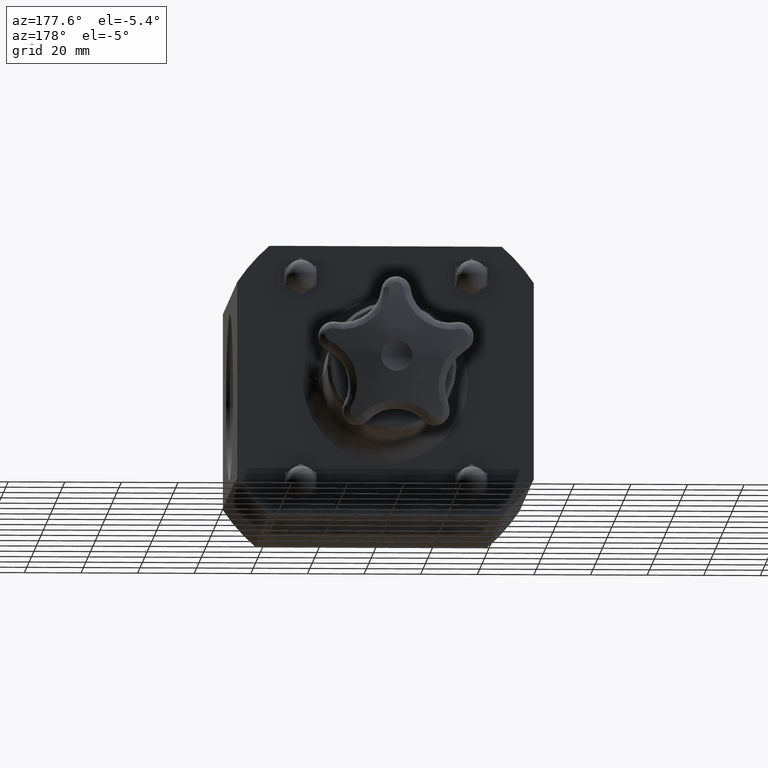
[diagram: clean part render]
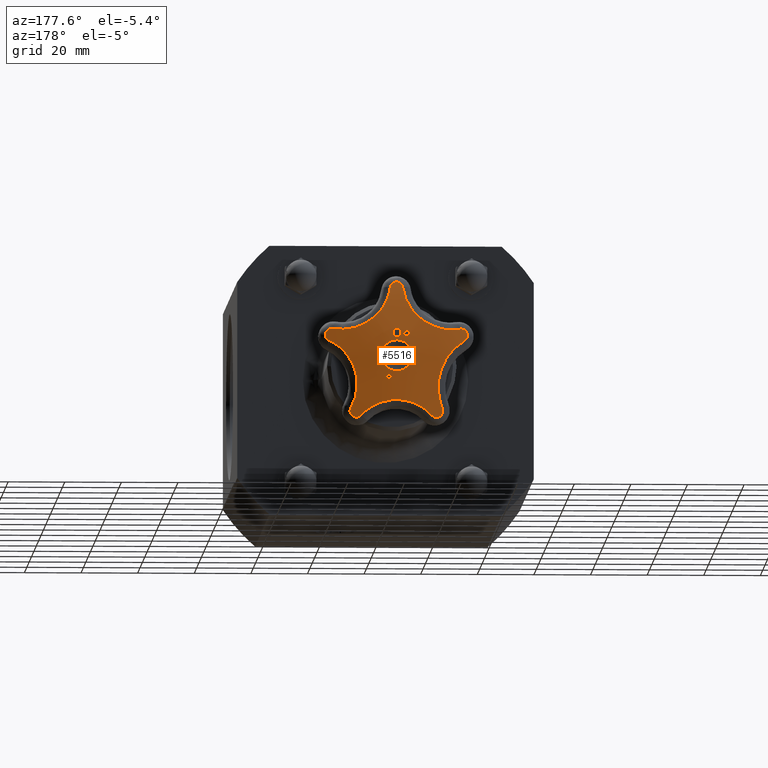
[diagram: same view with one face highlighted and labeled with its STEP entity id]
A machine part, auxiliary view. The second image highlights one B-rep face of the part: STEP entity #5516.
In plain terms, the highlighted spherical surface has radius 101.6 mm.
Its self-contained STEP definition (entity closure, byte-faithful):
#2327=CARTESIAN_POINT('',(0.085862900185203,8.490578033837450,-0.334336098257463));
#2328=VERTEX_POINT('',#2327);
#2335=CARTESIAN_POINT('',(0.080862571524466,8.488070388788941,-0.364135061299997));
#2336=VERTEX_POINT('',#2335);
#2337=CARTESIAN_POINT('',(0.138077283113864,4.505500000000001,-0.023169658459774));
#2338=DIRECTION('',(0.986211736099962,8.119753E-016,-0.165488403154721));
#2339=DIRECTION('',(0.165488403154721,1.362512E-016,0.986211736099962));
#2340=AXIS2_PLACEMENT_3D('',#2337,#2338,#2339);
#2341=CIRCLE('',#2340,3.997548977913186);
#2342=EDGE_CURVE('',#2336,#2328,#2341,.T.);
#2360=CARTESIAN_POINT('',(0.066931145986268,8.488560100352849,-0.361597094393903));
#2361=VERTEX_POINT('',#2360);
#2362=CARTESIAN_POINT('',(-0.061608234058832,4.505500000000001,-0.338180345563004));
#2363=DIRECTION('',(-0.179225881333302,0.0,-0.983807950496590));
#2364=DIRECTION('',(0.0,-1.0,0.0));
#2365=AXIS2_PLACEMENT_3D('',#2362,#2363,#2364);
#2366=CIRCLE('',#2365,3.985202438944732);
#2367=EDGE_CURVE('',#2361,#2336,#2366,.T.);
#2385=CARTESIAN_POINT('',(0.086359266902223,8.497345606544357,-0.240230577846814));
#2386=VERTEX_POINT('',#2385);
#2387=CARTESIAN_POINT('',(0.121696449326061,4.505500000000001,-0.019480935927100));
#2388=DIRECTION('',(-0.987428598717144,-8.129772E-016,0.158065690254078));
#2389=DIRECTION('',(-0.158065690254078,-1.301398E-016,-0.987428598717144));
#2390=AXIS2_PLACEMENT_3D('',#2387,#2388,#2389);
#2391=CIRCLE('',#2390,3.998100857576862);
#2392=EDGE_CURVE('',#2386,#2361,#2391,.T.);
#2410=CARTESIAN_POINT('',(0.178491128782152,8.488560100243761,-0.321516958794137));
#2411=VERTEX_POINT('',#2410);
#2412=CARTESIAN_POINT('',(-0.081379549747356,4.505500000000001,-0.092237461550080));
#2413=DIRECTION('',(0.661592173204071,0.0,0.749863851879202));
#2414=DIRECTION('',(0.0,1.0,0.0));
#2415=AXIS2_PLACEMENT_3D('',#2412,#2413,#2414);
#2416=CIRCLE('',#2415,3.998108255108873);
#2417=EDGE_CURVE('',#2411,#2386,#2416,.T.);
#2453=CARTESIAN_POINT('',(0.169360113250160,8.488070388702393,-0.332340564889027));
#2454=VERTEX_POINT('',#2453);
#2455=CARTESIAN_POINT('',(0.262739148876329,4.505500000000001,-0.221652121134104));
#2456=DIRECTION('',(0.764340282334966,0.0,-0.644813099122609));
#2457=DIRECTION('',(0.0,-1.0,0.0));
#2458=AXIS2_PLACEMENT_3D('',#2455,#2456,#2457);
#2459=CIRCLE('',#2458,3.985202438627741);
#2460=EDGE_CURVE('',#2454,#2411,#2459,.T.);
#2478=CARTESIAN_POINT('',(0.146539084429396,8.490578033778149,-0.312536976105991));
#2479=VERTEX_POINT('',#2478);
#2480=CARTESIAN_POINT('',(-0.091762441742966,4.505500000000001,-0.105744133077217));
#2481=DIRECTION('',(-0.655409775395539,0.0,-0.755273477831686));
#2482=DIRECTION('',(0.0,-1.0,0.0));
#2483=AXIS2_PLACEMENT_3D('',#2480,#2481,#2482);
#2484=CIRCLE('',#2483,3.997548978137118);
#2485=EDGE_CURVE('',#2479,#2454,#2484,.T.);
#2503=CARTESIAN_POINT('',(0.116200988857738,4.505500000000001,-0.323436538421052));
#2504=DIRECTION('',(0.338111065893150,0.0,-0.941106214579735));
#2505=DIRECTION('',(0.0,-1.0,0.0));
#2506=AXIS2_PLACEMENT_3D('',#2503,#2504,#2505);
#2507=CIRCLE('',#2506,3.985208418113498);
#2508=EDGE_CURVE('',#2328,#2479,#2507,.T.);
#2538=CARTESIAN_POINT('',(0.037834369669125,8.496204436490727,0.269901206082852));
#2539=VERTEX_POINT('',#2538);
#2546=CARTESIAN_POINT('',(-0.000813251585518,8.497463335806678,0.253432563411025));
#2547=VERTEX_POINT('',#2546);
#2548=CARTESIAN_POINT('',(-0.000813251585518,8.497463335806678,0.253432563411025));
#2549=CARTESIAN_POINT('',(0.004822604549686,8.497463267161418,0.253451729844247));
#2550=CARTESIAN_POINT('',(0.010434056143410,8.497408968571550,0.254137147028970));
#2551=CARTESIAN_POINT('',(0.019829419967581,8.497191776701515,0.256945437338924));
#2552=CARTESIAN_POINT('',(0.023603879105443,8.497063271092424,0.258616838560288));
#2553=CARTESIAN_POINT('',(0.031162797320999,8.496707503911848,0.263275608997045));
#2554=CARTESIAN_POINT('',(0.034718544485048,8.496475224151672,0.266334166676060));
#2555=CARTESIAN_POINT('',(0.037834369669125,8.496204436490727,0.269901206082852));
#2556=B_SPLINE_CURVE_WITH_KNOTS('',3,(#2548,#2549,#2550,#2551,#2552,#2553,#2554,#2555),.UNSPECIFIED.,.F.,.U.,(4,2,2,4),(0.0,0.042945472093289,0.074729953679080,0.111130521126663),.UNSPECIFIED.);
#2557=EDGE_CURVE('',#2547,#2539,#2556,.T.);
#2590=CARTESIAN_POINT('',(0.051972176469601,8.492648590963244,0.316140801626153));
#2591=VERTEX_POINT('',#2590);
#2598=CARTESIAN_POINT('',(0.037834369669125,8.496204436490727,0.269901206082852));
#2599=CARTESIAN_POINT('',(0.041442739555283,8.495886429832900,0.274097371770596));
#2600=CARTESIAN_POINT('',(0.044216393332110,8.495526143654534,0.278867364485765));
#2601=CARTESIAN_POINT('',(0.051175872144365,8.494247534047899,0.295695352673442));
#2602=CARTESIAN_POINT('',(0.052000310715345,8.493304176149836,0.307867975918427));
#2603=CARTESIAN_POINT('',(0.051972176469601,8.492648590963245,0.316140801626153));
#2604=B_SPLINE_CURVE_WITH_KNOTS('',3,(#2598,#2599,#2600,#2601,#2602,#2603),.UNSPECIFIED.,.F.,.U.,(4,2,4),(0.0,0.042240697270331,0.139117363804144),.UNSPECIFIED.);
#2605=EDGE_CURVE('',#2539,#2591,#2604,.T.);
#2631=CARTESIAN_POINT('',(0.037422621985940,8.488875481075144,0.362380082417698));
#2632=VERTEX_POINT('',#2631);
#2639=CARTESIAN_POINT('',(0.051972176469601,8.492648590963245,0.316140801626153));
#2640=CARTESIAN_POINT('',(0.051955724861650,8.492265235014529,0.320978368143260));
#2641=CARTESIAN_POINT('',(0.051649887753158,8.491873160763518,0.325860197870603));
#2642=CARTESIAN_POINT('',(0.050134657362976,8.491046460787356,0.336059631335725));
#2643=CARTESIAN_POINT('',(0.048942330808366,8.490679768741240,0.340537076610656));
#2644=CARTESIAN_POINT('',(0.045132529339024,8.489814489793274,0.351068251626343));
#2645=CARTESIAN_POINT('',(0.041865078415877,8.489314249290123,0.357098260899482));
#2646=CARTESIAN_POINT('',(0.037422621985940,8.488875481075144,0.362380082417698));
#2647=B_SPLINE_CURVE_WITH_KNOTS('',3,(#2639,#2640,#2641,#2642,#2643,#2644,#2645,#2646),.UNSPECIFIED.,.F.,.U.,(4,2,2,4),(0.0,0.036978033263811,0.078812994269673,0.145814753845857),.UNSPECIFIED.);
#2648=EDGE_CURVE('',#2591,#2632,#2647,.T.);
#2676=CARTESIAN_POINT('',(-0.001238542349030,8.487552846207736,0.378488567887761));
#2677=VERTEX_POINT('',#2676);
#2684=CARTESIAN_POINT('',(0.037422621985940,8.488875481075144,0.362380082417698));
#2685=CARTESIAN_POINT('',(0.034954443929442,8.488644692501275,0.365171856276012));
#2686=CARTESIAN_POINT('',(0.032197988751053,8.488440415363389,0.367645041378230));
#2687=CARTESIAN_POINT('',(0.025433171661508,8.488054380883789,0.372335971569166));
#2688=CARTESIAN_POINT('',(0.021382576080442,8.487892027163673,0.374321631798851));
#2689=CARTESIAN_POINT('',(0.014161922593864,8.487697132621298,0.376716303028089));
#2690=CARTESIAN_POINT('',(0.011126297743758,8.487640822220747,0.377412789087581));
#2691=CARTESIAN_POINT('',(0.004967186895542,8.487568654773591,0.378304358121796));
#2692=CARTESIAN_POINT('',(0.001864839243261,8.487552808314179,0.378499121875411));
#2693=CARTESIAN_POINT('',(-0.001238542349030,8.487552846207736,0.378488567887761));
#2694=B_SPLINE_CURVE_WITH_KNOTS('',3,(#2684,#2685,#2686,#2687,#2688,#2689,#2690,#2691,#2692,#2693),.UNSPECIFIED.,.F.,.U.,(4,2,2,2,4),(0.0,0.028449418287417,0.062797366334246,0.086669104210055,0.110412733579470),.UNSPECIFIED.);
#2695=EDGE_CURVE('',#2632,#2677,#2694,.T.);
#2881=CARTESIAN_POINT('',(-0.039886494311887,8.488875481072100,0.362117169387378));
#2882=VERTEX_POINT('',#2881);
#2889=CARTESIAN_POINT('',(-0.001238542349030,8.487552846207736,0.378488567887761));
#2890=CARTESIAN_POINT('',(-0.006745334190302,8.487552913447912,0.378469840376703));
#2891=CARTESIAN_POINT('',(-0.012222719771298,8.487603190919959,0.377803010782852));
#2892=CARTESIAN_POINT('',(-0.022169110236771,8.487836259202796,0.374873454632415));
#2893=CARTESIAN_POINT('',(-0.025880772573746,8.487983982792516,0.373045650941542));
#2894=CARTESIAN_POINT('',(-0.032976239086442,8.488326456239561,0.368822005397032));
#2895=CARTESIAN_POINT('',(-0.036677483482781,8.488576120274294,0.365763676003977));
#2896=CARTESIAN_POINT('',(-0.039886494311887,8.488875481072100,0.362117169387378));
#2897=B_SPLINE_CURVE_WITH_KNOTS('',3,(#2889,#2890,#2891,#2892,#2893,#2894,#2895,#2896),.UNSPECIFIED.,.F.,.U.,(4,2,2,4),(0.0,0.041961996486355,0.079020325656231,0.132098515306939),.UNSPECIFIED.);
#2898=EDGE_CURVE('',#2677,#2882,#2897,.T.);
#2924=CARTESIAN_POINT('',(-0.054121214575592,8.492648590959069,0.315779998964418));
#2925=VERTEX_POINT('',#2924);
#2932=CARTESIAN_POINT('',(-0.039886494311887,8.488875481072100,0.362117169387378));
#2933=CARTESIAN_POINT('',(-0.043384531614648,8.489215540252459,0.357991135129825));
#2934=CARTESIAN_POINT('',(-0.046110522559895,8.489601304155913,0.353327026506887));
#2935=CARTESIAN_POINT('',(-0.049655140330857,8.490287322165351,0.344989572698872));
#2936=CARTESIAN_POINT('',(-0.051408401706376,8.490680648419753,0.340203251638014));
#2937=CARTESIAN_POINT('',(-0.053714336300572,8.491694761028935,0.327721858865082));
#2938=CARTESIAN_POINT('',(-0.054141415064125,8.492177878462817,0.321719917253610));
#2939=CARTESIAN_POINT('',(-0.054121214575592,8.492648590959071,0.315779998964418));
#2940=B_SPLINE_CURVE_WITH_KNOTS('',3,(#2932,#2933,#2934,#2935,#2936,#2937,#2938,#2939),.UNSPECIFIED.,.F.,.U.,(4,2,2,4),(0.0,0.041300163745689,0.069239721804254,0.093823977580811),.UNSPECIFIED.);
#2941=EDGE_CURVE('',#2882,#2925,#2940,.T.);
#2967=CARTESIAN_POINT('',(-0.039571990800145,8.496205379604829,0.269637962344317));
#2968=VERTEX_POINT('',#2967);
#2975=CARTESIAN_POINT('',(-0.054121214575592,8.492648590959071,0.315779998964418));
#2976=CARTESIAN_POINT('',(-0.054104973183970,8.493027048439480,0.311004246190808));
#2977=CARTESIAN_POINT('',(-0.053791585087137,8.493402200783876,0.306211457940531));
#2978=CARTESIAN_POINT('',(-0.052375519715102,8.494143410979319,0.296655576028873));
#2979=CARTESIAN_POINT('',(-0.051258684496636,8.494507467278867,0.291916990166382));
#2980=CARTESIAN_POINT('',(-0.047377403862630,8.495352193214817,0.280860112488069));
#2981=CARTESIAN_POINT('',(-0.044132654634138,8.495811607413359,0.274796561836271));
#2982=CARTESIAN_POINT('',(-0.039571990800145,8.496205379604829,0.269637962344317));
#2983=B_SPLINE_CURVE_WITH_KNOTS('',3,(#2975,#2976,#2977,#2978,#2979,#2980,#2981,#2982),.UNSPECIFIED.,.F.,.U.,(4,2,2,4),(0.0,0.036505533163791,0.073822024429602,0.126837533468264),.UNSPECIFIED.);
#2984=EDGE_CURVE('',#2925,#2968,#2983,.T.);
#3011=CARTESIAN_POINT('',(-0.039571990800145,8.496205379604829,0.269637962344317));
#3012=CARTESIAN_POINT('',(-0.036994618978142,8.496426649193221,0.266741374653484));
#3013=CARTESIAN_POINT('',(-0.034125944551207,8.496624226597591,0.264155087526019));
#3014=CARTESIAN_POINT('',(-0.028127958870902,8.496941902899273,0.260022999604723));
#3015=CARTESIAN_POINT('',(-0.024119800176995,8.497119835051821,0.257727462092389));
#3016=CARTESIAN_POINT('',(-0.015614631027452,8.497330482346445,0.255058899401250));
#3017=CARTESIAN_POINT('',(-0.012615830697541,8.497382732516449,0.254406267976287));
#3018=CARTESIAN_POINT('',(-0.006666959610796,8.497448427235687,0.253597873925736));
#3019=CARTESIAN_POINT('',(-0.003741704705231,8.497463371475512,0.253422604320575));
#3020=CARTESIAN_POINT('',(-0.000813251586153,8.497463335806678,0.253432563411023));
#3021=B_SPLINE_CURVE_WITH_KNOTS('',3,(#3011,#3012,#3013,#3014,#3015,#3016,#3017,#3018,#3019,#3020),.UNSPECIFIED.,.F.,.U.,(4,2,2,2,4),(0.0,0.029592715149351,0.055552496815722,0.069221283901438,0.082236559754027),.UNSPECIFIED.);
#3022=EDGE_CURVE('',#2968,#2547,#3021,.T.);
#3296=CARTESIAN_POINT('',(-0.247118300170072,8.492930202010449,-0.198325313099392));
#3297=VERTEX_POINT('',#3296);
#3304=CARTESIAN_POINT('',(-0.207827658530660,8.493059962457522,-0.237008882018032));
#3305=VERTEX_POINT('',#3304);
#3306=CARTESIAN_POINT('',(-0.220785948703939,4.505500000000000,-0.224250808083117));
#3307=DIRECTION('',(0.701580297701931,0.0,0.712590405405847));
#3308=DIRECTION('',(0.0,1.0,0.0));
#3309=AXIS2_PLACEMENT_3D('',#3306,#3307,#3308);
#3310=CIRCLE('',#3309,3.987601426914302);
#3311=EDGE_CURVE('',#3305,#3297,#3310,.T.);
#3329=CARTESIAN_POINT('',(-0.176580613442941,8.496324840990898,-0.205271467783727));
#3330=VERTEX_POINT('',#3329);
#3331=CARTESIAN_POINT('',(0.012958290173278,4.505500000000001,-0.012758073934916));
#3332=DIRECTION('',(-0.712590405405847,0.0,0.701580297701931));
#3333=DIRECTION('',(0.0,1.0,0.0));
#3334=AXIS2_PLACEMENT_3D('',#3331,#3332,#3333);
#3335=CIRCLE('',#3334,3.999958664069575);
#3336=EDGE_CURVE('',#3330,#3305,#3335,.T.);
#3354=CARTESIAN_POINT('',(-0.218712377317301,8.496156275729469,-0.163790674304834));
#3355=VERTEX_POINT('',#3354);
#3356=CARTESIAN_POINT('',(-0.189538903616219,4.505500000000001,-0.192513393848812));
#3357=DIRECTION('',(-0.701580297701931,0.0,-0.712590405405848));
#3358=DIRECTION('',(0.0,-1.0,0.0));
#3359=AXIS2_PLACEMENT_3D('',#3356,#3357,#3358);
#3360=CIRCLE('',#3359,3.990866271526118);
#3361=EDGE_CURVE('',#3355,#3330,#3360,.T.);
#3379=CARTESIAN_POINT('',(-0.208751528883225,8.497092069880930,-0.153673507321846));
#3380=VERTEX_POINT('',#3379);
#3381=CARTESIAN_POINT('',(-0.029173473701083,4.505500000000001,0.028722719543978));
#3382=DIRECTION('',(-0.712590405405848,0.0,0.701580297701931));
#3383=DIRECTION('',(0.0,1.0,0.0));
#3384=AXIS2_PLACEMENT_3D('',#3381,#3382,#3383);
#3385=CIRCLE('',#3384,3.999790483739644);
#3386=EDGE_CURVE('',#3380,#3355,#3385,.T.);
#3404=CARTESIAN_POINT('',(-0.155255276069070,8.497156082813490,-0.206343199041757));
#3405=VERTEX_POINT('',#3404);
#3406=CARTESIAN_POINT('',(-0.179578055182143,4.505500000000001,-0.182396226865824));
#3407=DIRECTION('',(0.701580297701931,0.0,0.712590405405847));
#3408=DIRECTION('',(0.0,1.0,0.0));
#3409=AXIS2_PLACEMENT_3D('',#3406,#3407,#3408);
#3410=CIRCLE('',#3409,3.991802016448476);
#3411=EDGE_CURVE('',#3405,#3380,#3410,.T.);
#3429=CARTESIAN_POINT('',(-0.239444912833798,8.487646073155508,-0.291854048747285));
#3430=VERTEX_POINT('',#3429);
#3431=CARTESIAN_POINT('',(0.024322779113072,4.505500000000001,-0.023946972175933));
#3432=DIRECTION('',(0.712590405405848,0.0,-0.701580297701931));
#3433=DIRECTION('',(0.0,-1.0,0.0));
#3434=AXIS2_PLACEMENT_3D('',#3431,#3432,#3433);
#3435=CIRCLE('',#3434,3.999854365466301);
#3436=EDGE_CURVE('',#3430,#3405,#3435,.T.);
#3454=CARTESIAN_POINT('',(-0.292941165647953,8.487581907347240,-0.239184357027373));
#3455=VERTEX_POINT('',#3454);
#3456=CARTESIAN_POINT('',(-0.263767691946872,4.505500000000000,-0.267907076571352));
#3457=DIRECTION('',(-0.701580297701931,0.0,-0.712590405405847));
#3458=DIRECTION('',(0.0,-1.0,0.0));
#3459=AXIS2_PLACEMENT_3D('',#3456,#3457,#3458);
#3460=CIRCLE('',#3459,3.982292355290859);
#3461=EDGE_CURVE('',#3455,#3430,#3460,.T.);
#3479=CARTESIAN_POINT('',(-0.282980317213877,8.488896837187415,-0.229067190044385));
#3480=VERTEX_POINT('',#3479);
#3481=CARTESIAN_POINT('',(-0.029173473701083,4.505500000000001,0.028722719543978));
#3482=DIRECTION('',(-0.712590405405848,0.0,0.701580297701931));
#3483=DIRECTION('',(0.0,1.0,0.0));
#3484=AXIS2_PLACEMENT_3D('',#3481,#3482,#3483);
#3485=CIRCLE('',#3484,3.999790483739644);
#3486=EDGE_CURVE('',#3480,#3455,#3485,.T.);
#3504=CARTESIAN_POINT('',(-0.240848553339517,8.489065709633238,-0.270547983523279));
#3505=VERTEX_POINT('',#3504);
#3506=CARTESIAN_POINT('',(-0.253806843512795,4.505500000000000,-0.257789909588364));
#3507=DIRECTION('',(0.701580297701931,0.0,0.712590405405847));
#3508=DIRECTION('',(0.0,1.0,0.0));
#3509=AXIS2_PLACEMENT_3D('',#3506,#3507,#3508);
#3510=CIRCLE('',#3509,3.983607215665281);
#3511=EDGE_CURVE('',#3505,#3480,#3510,.T.);
#3529=CARTESIAN_POINT('',(-0.217788506964737,8.491914037971874,-0.247126049001020));
#3530=VERTEX_POINT('',#3529);
#3531=CARTESIAN_POINT('',(0.012958290173277,4.505500000000001,-0.012758073934915));
#3532=DIRECTION('',(-0.712590405405848,0.0,0.701580297701930));
#3533=DIRECTION('',(0.0,1.0,0.0));
#3534=AXIS2_PLACEMENT_3D('',#3531,#3532,#3533);
#3535=CIRCLE('',#3534,3.999958664069575);
#3536=EDGE_CURVE('',#3530,#3505,#3535,.T.);
#3554=CARTESIAN_POINT('',(-0.257079148604149,8.491784240222977,-0.208442480082380));
#3555=VERTEX_POINT('',#3554);
#3556=CARTESIAN_POINT('',(-0.230746797138015,4.505500000000000,-0.234367975066104));
#3557=DIRECTION('',(-0.701580297701931,0.0,-0.712590405405848));
#3558=DIRECTION('',(0.0,-1.0,0.0));
#3559=AXIS2_PLACEMENT_3D('',#3556,#3557,#3558);
#3560=CIRCLE('',#3559,3.986455514347798);
#3561=EDGE_CURVE('',#3555,#3530,#3560,.T.);
#3579=CARTESIAN_POINT('',(-0.026332351466134,4.505500000000001,0.025925494983724));
#3580=DIRECTION('',(-0.712590405405848,0.0,0.701580297701931));
#3581=DIRECTION('',(0.0,1.0,0.0));
#3582=AXIS2_PLACEMENT_3D('',#3579,#3580,#3581);
#3583=CIRCLE('',#3582,3.999829305854953);
#3584=EDGE_CURVE('',#3297,#3555,#3583,.T.);
#3606=CARTESIAN_POINT('',(0.104679989358757,8.487501420719624,0.364289425065761));
#3607=VERTEX_POINT('',#3606);
#3614=CARTESIAN_POINT('',(0.193260657033247,8.487499064924952,0.326088585172621));
#3615=VERTEX_POINT('',#3614);
#3616=CARTESIAN_POINT('',(0.148881029224554,4.505500000000001,0.345227513574775));
#3617=DIRECTION('',(0.395999965100261,0.0,0.918250525532435));
#3618=DIRECTION('',(0.0,1.0,0.0));
#3619=AXIS2_PLACEMENT_3D('',#3616,#3617,#3618);
#3620=CIRCLE('',#3619,3.982292355290859);
#3621=EDGE_CURVE('',#3615,#3607,#3620,.T.);
#3646=CARTESIAN_POINT('',(0.099057688326097,8.488816377129187,0.351252350992700));
#3647=VERTEX_POINT('',#3646);
#3654=CARTESIAN_POINT('',(-0.044201039865799,4.505500000000001,0.019061911490985));
#3655=DIRECTION('',(-0.918250525532435,-7.560210E-016,0.395999965100260));
#3656=DIRECTION('',(-0.395999965100260,-3.260377E-016,-0.918250525532435));
#3657=AXIS2_PLACEMENT_3D('',#3654,#3655,#3656);
#3658=CIRCLE('',#3657,3.999710353463748);
#3659=EDGE_CURVE('',#3607,#3647,#3658,.T.);
#3679=CARTESIAN_POINT('',(0.136025829875733,8.489099428197436,0.335309661763104));
#3680=VERTEX_POINT('',#3679);
#3687=CARTESIAN_POINT('',(0.143258728191895,4.505500000000001,0.332190439501715));
#3688=DIRECTION('',(-0.395999965100261,0.0,-0.918250525532434));
#3689=DIRECTION('',(0.0,-1.0,0.0));
#3690=AXIS2_PLACEMENT_3D('',#3687,#3688,#3689);
#3691=CIRCLE('',#3690,3.983607215665281);
#3692=EDGE_CURVE('',#3647,#3680,#3691,.T.);
#3712=CARTESIAN_POINT('',(0.094128134509063,8.497294244967611,0.238156671410436));
#3713=VERTEX_POINT('',#3712);
#3720=CARTESIAN_POINT('',(-0.007232898316163,4.505500000000001,0.003119222261388));
#3721=DIRECTION('',(-0.918250525532435,-7.560210E-016,0.395999965100261));
#3722=DIRECTION('',(-0.395999965100261,-3.260377E-016,-0.918250525532435));
#3723=AXIS2_PLACEMENT_3D('',#3720,#3721,#3722);
#3724=CIRCLE('',#3723,3.999992244446786);
#3725=EDGE_CURVE('',#3680,#3713,#3724,.T.);
#3745=CARTESIAN_POINT('',(0.108772519084282,8.497293856457107,0.231841209976490));
#3746=VERTEX_POINT('',#3745);
#3753=CARTESIAN_POINT('',(0.101361032825225,4.505500000000001,0.235037449149048));
#3754=DIRECTION('',(-0.395999965100260,0.0,-0.918250525532435));
#3755=DIRECTION('',(0.0,-1.0,0.0));
#3756=AXIS2_PLACEMENT_3D('',#3753,#3754,#3755);
#3757=CIRCLE('',#3756,3.991802016448476);
#3758=EDGE_CURVE('',#3713,#3746,#3757,.T.);
#3778=CARTESIAN_POINT('',(0.150670214450951,8.489099038887709,0.328994200329157));
#3779=VERTEX_POINT('',#3778);
#3786=CARTESIAN_POINT('',(0.007411486259055,4.505500000000001,-0.003196239172558));
#3787=DIRECTION('',(0.918250525532434,7.560210E-016,-0.395999965100261));
#3788=DIRECTION('',(0.395999965100261,3.260377E-016,0.918250525532434));
#3789=AXIS2_PLACEMENT_3D('',#3786,#3787,#3788);
#3790=CIRCLE('',#3789,3.999991856732535);
#3791=EDGE_CURVE('',#3746,#3779,#3790,.T.);
#3811=CARTESIAN_POINT('',(0.187638356000588,8.488814022112202,0.313051511099560));
#3812=VERTEX_POINT('',#3811);
#3819=CARTESIAN_POINT('',(0.143258728191895,4.505500000000001,0.332190439501715));
#3820=DIRECTION('',(-0.395999965100261,0.0,-0.918250525532435));
#3821=DIRECTION('',(0.0,-1.0,0.0));
#3822=AXIS2_PLACEMENT_3D('',#3819,#3820,#3821);
#3823=CIRCLE('',#3822,3.983607215665281);
#3824=EDGE_CURVE('',#3779,#3812,#3823,.T.);
#3843=CARTESIAN_POINT('',(0.044379627808692,4.505500000000001,-0.019138928402155));
#3844=DIRECTION('',(0.918250525532435,7.560210E-016,-0.395999965100259));
#3845=DIRECTION('',(0.395999965100259,3.260377E-016,0.918250525532435));
#3846=AXIS2_PLACEMENT_3D('',#3843,#3844,#3845);
#3847=CIRCLE('',#3846,3.999708008099489);
#3848=EDGE_CURVE('',#3812,#3615,#3847,.T.);
#3947=CARTESIAN_POINT('',(-0.132776476717603,8.497152316888537,-0.221545002897485));
#3948=VERTEX_POINT('',#3947);
#3955=CARTESIAN_POINT('',(-0.141106922486277,8.489658741024817,-0.326447488490870));
#3956=VERTEX_POINT('',#3955);
#3957=CARTESIAN_POINT('',(-0.114461481346889,4.505500000000001,0.009089538322840));
#3958=DIRECTION('',(0.996861755361221,8.207438E-016,-0.079162116559279));
#3959=DIRECTION('',(0.079162116559279,6.517635E-017,0.996861755361221));
#3960=AXIS2_PLACEMENT_3D('',#3957,#3958,#3959);
#3961=CIRCLE('',#3960,3.998351654067081);
#3962=EDGE_CURVE('',#3956,#3948,#3961,.T.);
#3980=CARTESIAN_POINT('',(-0.071391562909487,8.497171847508763,-0.247909472492114));
#3981=VERTEX_POINT('',#3980);
#3982=CARTESIAN_POINT('',(0.083150511259557,4.505500000000001,-0.073809704991097));
#3983=DIRECTION('',(-0.747864056465855,0.0,0.663851905959784));
#3984=DIRECTION('',(0.0,1.0,0.0));
#3985=AXIS2_PLACEMENT_3D('',#3982,#3983,#3984);
#3986=CIRCLE('',#3985,3.998454466406539);
#3987=EDGE_CURVE('',#3981,#3956,#3986,.T.);
#4005=CARTESIAN_POINT('',(-0.055754940032601,8.496998131883169,-0.254625312636307));
#4006=VERTEX_POINT('',#4005);
#4007=CARTESIAN_POINT('',(-0.101011795140338,4.505500000000001,-0.235187752062933));
#4008=DIRECTION('',(0.394635554071923,0.0,0.918837732933485));
#4009=DIRECTION('',(0.0,1.0,0.0));
#4010=AXIS2_PLACEMENT_3D('',#4007,#4008,#4009);
#4011=CIRCLE('',#4010,3.991802016448476);
#4012=EDGE_CURVE('',#4006,#3981,#4011,.T.);
#4030=CARTESIAN_POINT('',(-0.140907158403207,8.487784076964298,-0.348652696916783));
#4031=VERTEX_POINT('',#4030);
#4032=CARTESIAN_POINT('',(0.096057099062325,4.505500000000001,-0.086990350077204));
#4033=DIRECTION('',(0.741222642945153,0.0,-0.671259259590065));
#4034=DIRECTION('',(0.0,-1.0,0.0));
#4035=AXIS2_PLACEMENT_3D('',#4032,#4033,#4034);
#4036=CIRCLE('',#4035,3.997900162924680);
#4037=EDGE_CURVE('',#4031,#4006,#4036,.T.);
#4055=CARTESIAN_POINT('',(-0.156722485541543,8.487781975401070,-0.341860104313800));
#4056=VERTEX_POINT('',#4055);
#4057=CARTESIAN_POINT('',(-0.148368062214244,4.505500000000001,-0.345448281377658));
#4058=DIRECTION('',(-0.394635554071924,0.0,-0.918837732933484));
#4059=DIRECTION('',(0.0,-1.0,0.0));
#4060=AXIS2_PLACEMENT_3D('',#4057,#4058,#4059);
#4061=CIRCLE('',#4060,3.982292355290859);
#4062=EDGE_CURVE('',#4056,#4031,#4061,.T.);
#4080=CARTESIAN_POINT('',(-0.147698282548688,8.496978628851238,-0.215136172588455));
#4081=VERTEX_POINT('',#4080);
#4082=CARTESIAN_POINT('',(-0.131710197155654,4.505500000000001,0.009379282501568));
#4083=DIRECTION('',(-0.997474063033574,-8.212479E-016,0.071031637847470));
#4084=DIRECTION('',(-0.071031637847470,-5.848231E-017,-0.997474063033574));
#4085=AXIS2_PLACEMENT_3D('',#4082,#4083,#4084);
#4086=CIRCLE('',#4085,3.997819962557716);
#4087=EDGE_CURVE('',#4081,#4056,#4086,.T.);
#4105=CARTESIAN_POINT('',(-0.101011795140338,4.505500000000001,-0.235187752062933));
#4106=DIRECTION('',(0.394635554071923,0.0,0.918837732933485));
#4107=DIRECTION('',(0.0,1.0,0.0));
#4108=AXIS2_PLACEMENT_3D('',#4105,#4106,#4107);
#4109=CIRCLE('',#4108,3.991802016448476);
#4110=EDGE_CURVE('',#3948,#4081,#4109,.T.);
#4132=CARTESIAN_POINT('',(-0.069865805707584,8.497162659387477,0.248491414025746));
#4133=VERTEX_POINT('',#4132);
#4140=CARTESIAN_POINT('',(-0.084532147718005,8.497264063873194,0.242227113207305));
#4141=VERTEX_POINT('',#4140);
#4142=CARTESIAN_POINT('',(-0.100539922146023,4.505500000000001,0.235389858602194));
#4143=DIRECTION('',(0.392792028171763,0.0,-0.919627328108899));
#4144=DIRECTION('',(0.0,-1.0,0.0));
#4145=AXIS2_PLACEMENT_3D('',#4142,#4143,#4144);
#4146=CIRCLE('',#4145,3.991802016448476);
#4147=EDGE_CURVE('',#4141,#4133,#4146,.T.);
#4172=CARTESIAN_POINT('',(-0.117000849670736,8.487652665435395,0.358846694762692));
#4173=VERTEX_POINT('',#4172);
#4180=CARTESIAN_POINT('',(0.030674116438438,4.505500000000001,0.013101555423552));
#4181=DIRECTION('',(0.919627328108900,7.571545E-016,0.392792028171762));
#4182=DIRECTION('',(-0.392792028171762,-3.233965E-016,0.919627328108900));
#4183=AXIS2_PLACEMENT_3D('',#4180,#4181,#4182);
#4184=CIRCLE('',#4183,3.999860928560668);
#4185=EDGE_CURVE('',#4133,#4173,#4184,.T.);
#4205=CARTESIAN_POINT('',(-0.144723813227019,8.487791062296548,0.347005638337589));
#4206=VERTEX_POINT('',#4205);
#4213=CARTESIAN_POINT('',(-0.147674966109175,4.505500000000001,0.345745139339139));
#4214=DIRECTION('',(-0.392792028171761,0.0,0.919627328108900));
#4215=DIRECTION('',(0.0,1.0,0.0));
#4216=AXIS2_PLACEMENT_3D('',#4213,#4214,#4215);
#4217=CIRCLE('',#4216,3.982292355290859);
#4218=EDGE_CURVE('',#4173,#4206,#4217,.T.);
#4244=CARTESIAN_POINT('',(-0.170668187046201,8.488392332671245,0.327781995050034));
#4245=VERTEX_POINT('',#4244);
#4252=CARTESIAN_POINT('',(-0.144723813227019,8.487791062296546,0.347005638337589));
#4253=CARTESIAN_POINT('',(-0.150088261328745,8.487795762969325,0.344714370575645));
#4254=CARTESIAN_POINT('',(-0.155816045050099,8.487823287565297,0.341843284165148));
#4255=CARTESIAN_POINT('',(-0.163386369744129,8.487985173854675,0.336346581494136));
#4256=CARTESIAN_POINT('',(-0.167427829443189,8.488105667536207,0.332952450875756));
#4257=CARTESIAN_POINT('',(-0.170668187046201,8.488392332671245,0.327781995050034));
#4258=B_SPLINE_CURVE_WITH_KNOTS('',3,(#4252,#4253,#4254,#4255,#4256,#4257),.UNSPECIFIED.,.F.,.U.,(4,2,4),(0.0,0.044449644500484,0.071079555324561),.UNSPECIFIED.);
#4259=EDGE_CURVE('',#4206,#4245,#4258,.T.);
#4431=CARTESIAN_POINT('',(-0.172546135424808,8.490815390487377,0.295785512651345));
#4432=VERTEX_POINT('',#4431);
#4439=CARTESIAN_POINT('',(-0.170668187046201,8.488392332671245,0.327781995050034));
#4440=CARTESIAN_POINT('',(-0.172986087574707,8.488591167831977,0.324159065981218));
#4441=CARTESIAN_POINT('',(-0.174567491806922,8.488838750576290,0.320245416315975));
#4442=CARTESIAN_POINT('',(-0.176129629330608,8.489442814318249,0.311764074180628));
#4443=CARTESIAN_POINT('',(-0.175887094211250,8.489718772794619,0.308335133779386));
#4444=CARTESIAN_POINT('',(-0.175001277294214,8.490211349698701,0.302427671544135));
#4445=CARTESIAN_POINT('',(-0.173928522803418,8.490515328212927,0.299022037632057));
#4446=CARTESIAN_POINT('',(-0.172546135424808,8.490815390487377,0.295785512651345));
#4447=B_SPLINE_CURVE_WITH_KNOTS('',3,(#4439,#4440,#4441,#4442,#4443,#4444,#4445,#4446),.UNSPECIFIED.,.F.,.U.,(4,2,2,4),(0.0,0.032808337471925,0.065876100718766,0.113361042324126),.UNSPECIFIED.);
#4448=EDGE_CURVE('',#4245,#4432,#4447,.T.);
#4476=CARTESIAN_POINT('',(-0.152421846635915,8.493095568897900,0.275407261294860));
#4477=VERTEX_POINT('',#4476);
#4484=CARTESIAN_POINT('',(-0.172546135424808,8.490815390487377,0.295785512651345));
#4485=CARTESIAN_POINT('',(-0.171321928932312,8.491081117873360,0.292919329875214));
#4486=CARTESIAN_POINT('',(-0.169804261392701,8.491343863950837,0.290215418914446));
#4487=CARTESIAN_POINT('',(-0.165910493783790,8.491891779064993,0.284897251377496));
#4488=CARTESIAN_POINT('',(-0.163657217073235,8.492148699667299,0.282590003201545));
#4489=CARTESIAN_POINT('',(-0.158684575838198,8.492639217410808,0.278482510744070));
#4490=CARTESIAN_POINT('',(-0.155702157988005,8.492881831002917,0.276686491070644));
#4491=CARTESIAN_POINT('',(-0.152421846635915,8.493095568897900,0.275407261294860));
#4492=B_SPLINE_CURVE_WITH_KNOTS('',3,(#4484,#4485,#4486,#4487,#4488,#4489,#4490,#4491),.UNSPECIFIED.,.F.,.U.,(4,2,2,4),(0.0,0.023835253161564,0.050398261842090,0.082258015573386),.UNSPECIFIED.);
#4493=EDGE_CURVE('',#4432,#4477,#4492,.T.);
#4521=CARTESIAN_POINT('',(-0.114533366717588,8.494179920008204,0.278055037055049));
#4522=VERTEX_POINT('',#4521);
#4529=CARTESIAN_POINT('',(-0.152421846635915,8.493095568897900,0.275407261294860));
#4530=CARTESIAN_POINT('',(-0.149545358874613,8.493283458798842,0.274278789378132));
#4531=CARTESIAN_POINT('',(-0.146578636591120,8.493448267506802,0.273482909697009));
#4532=CARTESIAN_POINT('',(-0.136733843929605,8.493902980470308,0.272015981091796));
#4533=CARTESIAN_POINT('',(-0.131190118846065,8.494021826509043,0.272931617342635));
#4534=CARTESIAN_POINT('',(-0.123610109338998,8.494155761130770,0.274533252414455));
#4535=CARTESIAN_POINT('',(-0.118915137061153,8.494184566599571,0.276183491476069));
#4536=CARTESIAN_POINT('',(-0.114533366717588,8.494179920008204,0.278055037055049));
#4537=B_SPLINE_CURVE_WITH_KNOTS('',3,(#4529,#4530,#4531,#4532,#4533,#4534,#4535,#4536),.UNSPECIFIED.,.F.,.U.,(4,2,2,4),(0.0,0.023588710723971,0.075924731072629,0.159708716541644),.UNSPECIFIED.);
#4538=EDGE_CURVE('',#4477,#4522,#4537,.T.);
#4558=CARTESIAN_POINT('',(-0.102102747574609,8.494143834417175,0.283364413968241));
#4559=VERTEX_POINT('',#4558);
#4566=CARTESIAN_POINT('',(-0.118110522002628,4.505500000000001,0.276527159363129));
#4567=DIRECTION('',(0.392792028171763,0.0,-0.919627328108899));
#4568=DIRECTION('',(0.0,-1.0,0.0));
#4569=AXIS2_PLACEMENT_3D('',#4566,#4567,#4568);
#4570=CIRCLE('',#4569,3.988681816681650);
#4571=EDGE_CURVE('',#4522,#4559,#4570,.T.);
#4590=CARTESIAN_POINT('',(0.016007774428017,4.505500000000001,0.006837254605111));
#4591=DIRECTION('',(-0.919627328108900,-7.571545E-016,-0.392792028171761));
#4592=DIRECTION('',(0.392792028171761,3.233965E-016,-0.919627328108900));
#4593=AXIS2_PLACEMENT_3D('',#4590,#4591,#4592);
#4594=CIRCLE('',#4593,3.999962125209104);
#4595=EDGE_CURVE('',#4559,#4141,#4594,.T.);
#4826=CARTESIAN_POINT('',(-0.025446717491287,8.489118720077398,-0.360741399922221));
#4827=VERTEX_POINT('',#4826);
#4834=CARTESIAN_POINT('',(-0.015977407253335,8.497295876022475,-0.255559008112469));
#4835=VERTEX_POINT('',#4834);
#4836=CARTESIAN_POINT('',(0.006973418085272,4.505500000000001,-0.000627799559720));
#4837=DIRECTION('',(-0.995971991168664,-8.200112E-016,0.089664891722048));
#4838=DIRECTION('',(-0.089664891722048,-7.382358E-017,-0.995971991168664));
#4839=AXIS2_PLACEMENT_3D('',#4836,#4837,#4838);
#4840=CIRCLE('',#4839,3.999993872158797);
#4841=EDGE_CURVE('',#4835,#4827,#4840,.T.);
#4859=CARTESIAN_POINT('',(-0.003483366237259,8.497254161384001,-0.256683815682171));
#4860=VERTEX_POINT('',#4859);
#4861=CARTESIAN_POINT('',(-0.022950825338608,4.505500000000001,-0.254931208552749));
#4862=DIRECTION('',(0.089664891722049,0.0,0.995971991168664));
#4863=DIRECTION('',(0.0,1.0,0.0));
#4864=AXIS2_PLACEMENT_3D('',#4861,#4862,#4863);
#4865=CIRCLE('',#4864,3.991802016448476);
#4866=EDGE_CURVE('',#4860,#4835,#4865,.T.);
#4884=CARTESIAN_POINT('',(-0.014077484044913,8.487918389468891,-0.374360248507998));
#4885=VERTEX_POINT('',#4884);
#4886=CARTESIAN_POINT('',(0.019467459101347,4.505500000000001,-0.001752607129422));
#4887=DIRECTION('',(0.995971991168664,8.200112E-016,-0.089664891722048));
#4888=DIRECTION('',(0.089664891722048,7.382358E-017,0.995971991168664));
#4889=AXIS2_PLACEMENT_3D('',#4886,#4887,#4888);
#4890=CIRCLE('',#4889,3.999952243015458);
#4891=EDGE_CURVE('',#4885,#4860,#4890,.T.);
#4909=CARTESIAN_POINT('',(-0.053012402560125,8.487918389467351,-0.370855034221021));
#4910=VERTEX_POINT('',#4909);
#4911=CARTESIAN_POINT('',(-0.033544943146262,4.505500000000001,-0.372607641378576));
#4912=DIRECTION('',(-0.089664891722049,0.0,-0.995971991168664));
#4913=DIRECTION('',(0.0,-1.0,0.0));
#4914=AXIS2_PLACEMENT_3D('',#4911,#4912,#4913);
#4915=CIRCLE('',#4914,3.982466356716100);
#4916=EDGE_CURVE('',#4910,#4885,#4915,.T.);
#4934=CARTESIAN_POINT('',(-0.051887594990424,8.489076919809040,-0.358360993204945));
#4935=VERTEX_POINT('',#4934);
#4936=CARTESIAN_POINT('',(-0.019467459413864,4.505500000000001,0.001752607157555));
#4937=DIRECTION('',(-0.995971991168664,-8.200112E-016,0.089664891722049));
#4938=DIRECTION('',(-0.089664891722049,-7.382358E-017,-0.995971991168664));
#4939=AXIS2_PLACEMENT_3D('',#4936,#4937,#4938);
#4940=CIRCLE('',#4939,3.999952243013925);
#4941=EDGE_CURVE('',#4935,#4910,#4940,.T.);
#4959=CARTESIAN_POINT('',(-0.032420135576561,4.505500000000001,-0.360113600362501));
#4960=DIRECTION('',(0.089664891722049,0.0,0.995971991168664));
#4961=DIRECTION('',(0.0,1.0,0.0));
#4962=AXIS2_PLACEMENT_3D('',#4959,#4960,#4961);
#4963=CIRCLE('',#4962,3.983624873107803);
#4964=EDGE_CURVE('',#4827,#4935,#4963,.T.);
#4986=CARTESIAN_POINT('',(0.158721080860078,8.496978628851238,-0.207137572435437));
#4987=VERTEX_POINT('',#4986);
#4994=CARTESIAN_POINT('',(0.169441733074481,8.497152316888537,-0.194939170438111));
#4995=VERTEX_POINT('',#4994);
#4996=CARTESIAN_POINT('',(0.192263240588115,4.505500000000001,-0.168971914223765));
#4997=DIRECTION('',(-0.751139115701745,0.0,0.660143945562481));
#4998=DIRECTION('',(0.0,1.0,0.0));
#4999=AXIS2_PLACEMENT_3D('',#4996,#4997,#4998);
#5000=CIRCLE('',#4999,3.991802016448476);
#5001=EDGE_CURVE('',#4995,#4987,#5000,.T.);
#5026=CARTESIAN_POINT('',(0.276397654900072,8.487781975401070,-0.255018832170284));
#5027=VERTEX_POINT('',#5026);
#5034=CARTESIAN_POINT('',(-0.049765265912097,4.505500000000001,-0.122306848883140));
#5035=DIRECTION('',(-0.376884729195410,0.0,-0.926260169120589));
#5036=DIRECTION('',(0.0,-1.0,0.0));
#5037=AXIS2_PLACEMENT_3D('',#5034,#5035,#5036);
#5038=CIRCLE('',#5037,3.997819962557716);
#5039=EDGE_CURVE('',#4987,#5027,#5038,.T.);
#5059=CARTESIAN_POINT('',(0.287760262336894,8.487784076964298,-0.242089986939585));
#5060=VERTEX_POINT('',#5059);
#5067=CARTESIAN_POINT('',(0.282399935586322,4.505500000000001,-0.248189188670306));
#5068=DIRECTION('',(0.751139115701747,0.0,-0.660143945562480));
#5069=DIRECTION('',(0.0,-1.0,0.0));
#5070=AXIS2_PLACEMENT_3D('',#5067,#5068,#5069);
#5071=CIRCLE('',#5070,3.982292355290859);
#5072=EDGE_CURVE('',#5027,#5060,#5071,.T.);
#5092=CARTESIAN_POINT('',(0.224778273247024,8.496998131883169,-0.131974963721373));
#5093=VERTEX_POINT('',#5092);
#5100=CARTESIAN_POINT('',(0.112492012560625,4.505500000000001,0.064341544874862));
#5101=DIRECTION('',(0.868042317271149,7.146832E-016,0.496490216848765));
#5102=DIRECTION('',(-0.496490216848765,-4.087741E-016,0.868042317271149));
#5103=AXIS2_PLACEMENT_3D('',#5100,#5101,#5102);
#5104=CIRCLE('',#5103,3.997900162924679);
#5105=EDGE_CURVE('',#5060,#5093,#5104,.T.);
#5125=CARTESIAN_POINT('',(0.213544056854686,8.497171847508763,-0.144757720305398));
#5126=VERTEX_POINT('',#5125);
#5133=CARTESIAN_POINT('',(0.192263240588116,4.505500000000001,-0.168971914223765));
#5134=DIRECTION('',(-0.751139115701746,0.0,0.660143945562480));
#5135=DIRECTION('',(0.0,1.0,0.0));
#5136=AXIS2_PLACEMENT_3D('',#5133,#5134,#5135);
#5137=CIRCLE('',#5136,3.991802016448476);
#5138=EDGE_CURVE('',#5093,#5126,#5137,.T.);
#5158=CARTESIAN_POINT('',(0.266588010713144,8.489658741024817,-0.235393200538052));
#5159=VERTEX_POINT('',#5158);
#5166=CARTESIAN_POINT('',(0.095958453034006,4.505500000000001,0.056159196619242));
#5167=DIRECTION('',(-0.863059972225388,0.0,-0.505101459453755));
#5168=DIRECTION('',(0.0,-1.0,0.0));
#5169=AXIS2_PLACEMENT_3D('',#5166,#5167,#5168);
#5170=CIRCLE('',#5169,3.998454466406539);
#5171=EDGE_CURVE('',#5126,#5159,#5170,.T.);
#5190=CARTESIAN_POINT('',(-0.044140309788648,4.505500000000001,-0.105998506927260));
#5191=DIRECTION('',(0.384424403566333,0.0,0.923156475329437));
#5192=DIRECTION('',(0.0,1.0,0.0));
#5193=AXIS2_PLACEMENT_3D('',#5190,#5191,#5192);
#5194=CIRCLE('',#5193,3.998351654067081);
#5195=EDGE_CURVE('',#5159,#4995,#5194,.T.);
#5245=CARTESIAN_POINT('',(-4.322624E-015,4.505500000000001,-2.622574E-016));
#5246=DIRECTION('',(0.0,0.0,1.0));
#5247=DIRECTION('',(1.0,0.0,0.0));
#5248=AXIS2_PLACEMENT_3D('',#5245,#5246,#5247);
#5249=SPHERICAL_SURFACE('',#5248,4.0);
#5250=CARTESIAN_POINT('',(0.634239059988191,8.387776509861762,-0.725030975725086));
#5251=VERTEX_POINT('',#5250);
#5252=CARTESIAN_POINT('',(0.939272693013331,8.387776509861745,0.213766014920971));
#5253=VERTEX_POINT('',#5252);
#5254=CARTESIAN_POINT('',(0.634239059988191,8.387776509861762,-0.725030975725086));
#5255=CARTESIAN_POINT('',(0.609404925107199,8.400252050247245,-0.679953289228776));
#5256=CARTESIAN_POINT('',(0.579295507666876,8.417192246477203,-0.606732923882731));
#5257=CARTESIAN_POINT('',(0.556968347882100,8.434642818001832,-0.503679189036622));
#5258=CARTESIAN_POINT('',(0.546606601417031,8.448481225779712,-0.398942363164244));
#5259=CARTESIAN_POINT('',(0.555107884599438,8.456715941716707,-0.291152142528390));
#5260=CARTESIAN_POINT('',(0.582018503244344,8.458693951968940,-0.188719930507990));
#5261=CARTESIAN_POINT('',(0.621146099316156,8.456618894900480,-0.088871245082008));
#5262=CARTESIAN_POINT('',(0.691305479761670,8.446312691558275,0.024904200397697));
#5263=CARTESIAN_POINT('',(0.803579446288930,8.422648723076760,0.136976085439592));
#5264=CARTESIAN_POINT('',(0.892685456524012,8.400252050247229,0.191894538714845));
#5265=CARTESIAN_POINT('',(0.939272693013330,8.387776509861745,0.213766014920971));
#5266=B_SPLINE_CURVE_WITH_KNOTS('',3,(#5254,#5255,#5256,#5257,#5258,#5259,#5260,#5261,#5262,#5263,#5264,#5265),.UNSPECIFIED.,.F.,.U.,(4,1,1,1,1,1,1,1,1,4),(0.0,0.391421298642903,0.587131947964354,0.782842597285806,1.174263895928709,1.369974545250160,1.565685194571612,1.957106493214515,2.348527791857418,2.739949090500320),.UNSPECIFIED.);
#5267=EDGE_CURVE('',#5251,#5253,#5266,.T.);
#5268=ORIENTED_EDGE('',*,*,#5267,.F.);
#5269=CARTESIAN_POINT('',(0.493554785946232,8.387776509861830,-0.827244083837786));
#5270=VERTEX_POINT('',#5269);
#5271=CARTESIAN_POINT('',(0.493554785946232,8.387776509861830,-0.827244083837786));
#5272=CARTESIAN_POINT('',(0.501637970017591,8.384911454578136,-0.835867225160409));
#5273=CARTESIAN_POINT('',(0.521408673032935,8.379288600509913,-0.849918180831295));
#5274=CARTESIAN_POINT('',(0.557544374307087,8.372579758185575,-0.857497314918472));
#5275=CARTESIAN_POINT('',(0.594045399974518,8.368829443855212,-0.849863204254874));
#5276=CARTESIAN_POINT('',(0.619473349334351,8.368829658215628,-0.831388176337173));
#5277=CARTESIAN_POINT('',(0.633853762489224,8.370687556547514,-0.811584014607303));
#5278=CARTESIAN_POINT('',(0.643896299974888,8.373676576458401,-0.789227812500321));
#5279=CARTESIAN_POINT('',(0.646508102562249,8.378148970960133,-0.764775346479840));
#5280=CARTESIAN_POINT('',(0.641802099843074,8.383475684238483,-0.741288064154681));
#5281=CARTESIAN_POINT('',(0.637090686737676,8.386343982219946,-0.730207106773521));
#5282=CARTESIAN_POINT('',(0.634239059988133,8.387776509861793,-0.725030975724981));
#5283=B_SPLINE_CURVE_WITH_KNOTS('',3,(#5271,#5272,#5273,#5274,#5275,#5276,#5277,#5278,#5279,#5280,#5281,#5282),.UNSPECIFIED.,.F.,.U.,(4,1,1,1,1,1,1,1,1,4),(0.0,0.089891389485037,0.179782778970073,0.269674168455110,0.359565557940146,0.404511252682665,0.449456947425183,0.539348336910220,0.584294031652738,0.629239726395256),.UNSPECIFIED.);
#5284=EDGE_CURVE('',#5270,#5251,#5283,.T.);
#5285=ORIENTED_EDGE('',*,*,#5284,.F.);
#5286=CARTESIAN_POINT('',(-0.493554785946607,8.387776509861700,-0.827244083838169));
#5287=VERTEX_POINT('',#5286);
#5288=CARTESIAN_POINT('',(-0.493554785946607,8.387776509861702,-0.827244083838169));
#5289=CARTESIAN_POINT('',(-0.458357528183625,8.400252050247188,-0.789695646838574));
#5290=CARTESIAN_POINT('',(-0.378597938302425,8.422648713600383,-0.721921654088775));
#5291=CARTESIAN_POINT('',(-0.237307274911673,8.446313448623748,-0.649772375081309));
#5292=CARTESIAN_POINT('',(-0.107440855165658,8.456618837080489,-0.618208212995791));
#5293=CARTESIAN_POINT('',(-0.000359144895781,8.458696398202429,-0.611842433397341));
#5294=CARTESIAN_POINT('',(0.092079263594623,8.456960927404275,-0.617160469468842));
#5295=CARTESIAN_POINT('',(0.197515482170301,8.449775556433414,-0.639167297773387));
#5296=CARTESIAN_POINT('',(0.295598802992758,8.436817809514935,-0.678737528067243));
#5297=CARTESIAN_POINT('',(0.397978029152488,8.417197283324539,-0.738418463364170));
#5298=CARTESIAN_POINT('',(0.458357528183223,8.400252050247307,-0.789695646838220));
#5299=CARTESIAN_POINT('',(0.493554785946235,8.387776509861830,-0.827244083837789));
#5300=B_SPLINE_CURVE_WITH_KNOTS('',3,(#5288,#5289,#5290,#5291,#5292,#5293,#5294,#5295,#5296,#5297,#5298,#5299),.UNSPECIFIED.,.F.,.U.,(4,1,1,1,1,1,1,1,1,4),(0.0,0.391421298642866,0.782842597285732,1.174263895928598,1.369974545250031,1.565685194571464,1.859251168553613,2.152817142535763,2.348527791857196,2.739949090500062),.UNSPECIFIED.);
#5301=EDGE_CURVE('',#5287,#5270,#5300,.T.);
#5302=ORIENTED_EDGE('',*,*,#5301,.F.);
#5303=CARTESIAN_POINT('',(-0.638344111801270,8.385505170405436,-0.733537096918585));
#5304=VERTEX_POINT('',#5303);
#5305=CARTESIAN_POINT('',(-0.638344111801269,8.385505170405436,-0.733537096918586));
#5306=CARTESIAN_POINT('',(-0.642732585975753,8.382797134448262,-0.744042137357271));
#5307=CARTESIAN_POINT('',(-0.647418469223033,8.377615558794716,-0.766808851905340));
#5308=CARTESIAN_POINT('',(-0.641722708782010,8.372652902543489,-0.795965725024517));
#5309=CARTESIAN_POINT('',(-0.630563800025648,8.370152590997380,-0.816668396003626));
#5310=CARTESIAN_POINT('',(-0.619218165174486,8.369077811376277,-0.830323536469947));
#5311=CARTESIAN_POINT('',(-0.605334213895061,8.368882791908366,-0.841392729958636));
#5312=CARTESIAN_POINT('',(-0.584274440308242,8.369774555981358,-0.852203373175111));
#5313=CARTESIAN_POINT('',(-0.554832303846500,8.373020933280856,-0.857243968588191));
#5314=CARTESIAN_POINT('',(-0.520366709300208,8.379575393366597,-0.849226662364084));
#5315=CARTESIAN_POINT('',(-0.501332804766131,8.385019619294974,-0.835541674849112));
#5316=CARTESIAN_POINT('',(-0.493554785946456,8.387776509861755,-0.827244083838009));
#5317=B_SPLINE_CURVE_WITH_KNOTS('',3,(#5305,#5306,#5307,#5308,#5309,#5310,#5311,#5312,#5313,#5314,#5315,#5316),.UNSPECIFIED.,.F.,.U.,(4,1,1,1,1,1,1,1,1,4),(0.0,0.086497710922585,0.172995421845170,0.216244277306462,0.259493132767755,0.302741988229047,0.345990843690340,0.432488554612925,0.518986265535510,0.605483976458095),.UNSPECIFIED.);
#5318=EDGE_CURVE('',#5304,#5287,#5317,.T.);
#5319=ORIENTED_EDGE('',*,*,#5318,.F.);
#5320=CARTESIAN_POINT('',(-0.947593522284921,8.385505170405343,0.218234722607282));
#5321=VERTEX_POINT('',#5320);
#5322=CARTESIAN_POINT('',(-0.947593522284921,8.385505170405342,0.218234722607282));
#5323=CARTESIAN_POINT('',(-0.904284021874673,8.397565117402349,0.191873864021962));
#5324=CARTESIAN_POINT('',(-0.842166770023281,8.413771067980145,0.145143318002696));
#5325=CARTESIAN_POINT('',(-0.760492935553346,8.432474406569821,0.061306752846236));
#5326=CARTESIAN_POINT('',(-0.697947159219848,8.444670637741082,-0.021536578243080));
#5327=CARTESIAN_POINT('',(-0.635525584351777,8.453109180338764,-0.137568480575551));
#5328=CARTESIAN_POINT('',(-0.591003164324316,8.453087194419172,-0.274794534752733));
#5329=CARTESIAN_POINT('',(-0.573668826769159,8.441577358092363,-0.431918008635346));
#5330=CARTESIAN_POINT('',(-0.588448189436630,8.419203053549914,-0.587297859927757));
#5331=CARTESIAN_POINT('',(-0.618800513865733,8.397565117402436,-0.686754028711439));
#5332=CARTESIAN_POINT('',(-0.638344111801270,8.385505170405436,-0.733537096918587));
#5333=B_SPLINE_CURVE_WITH_KNOTS('',3,(#5322,#5323,#5324,#5325,#5326,#5327,#5328,#5329,#5330,#5331,#5332),.UNSPECIFIED.,.F.,.U.,(4,1,1,1,1,1,1,1,4),(0.0,0.385208256310145,0.577812384465218,0.866718576697827,1.155624768930436,1.540833025240581,1.926041281550726,2.311249537860871,2.696457794171016),.UNSPECIFIED.);
#5334=EDGE_CURVE('',#5321,#5304,#5333,.T.);
#5335=ORIENTED_EDGE('',*,*,#5334,.F.);
#5336=CARTESIAN_POINT('',(-0.885536082012027,8.387776509861736,0.379150297943406));
#5337=VERTEX_POINT('',#5336);
#5338=CARTESIAN_POINT('',(-0.885536082011868,8.387776509861777,0.379150297943373));
#5339=CARTESIAN_POINT('',(-0.891120957528650,8.386398064578385,0.380220841636427));
#5340=CARTESIAN_POINT('',(-0.902652161042199,8.383637544100766,0.381277405740645));
#5341=CARTESIAN_POINT('',(-0.925574777165309,8.378485655169589,0.378862972598696));
#5342=CARTESIAN_POINT('',(-0.947332141241847,8.374107523275663,0.369712313253912));
#5343=CARTESIAN_POINT('',(-0.965303381373324,8.371063977229019,0.354553429202766));
#5344=CARTESIAN_POINT('',(-0.979984119887974,8.369037549123084,0.336089762932157));
#5345=CARTESIAN_POINT('',(-0.988648897088343,8.368715138131888,0.313670481847766));
#5346=CARTESIAN_POINT('',(-0.990191126814812,8.370146390382434,0.290056717921696));
#5347=CARTESIAN_POINT('',(-0.988411404119268,8.371557031384660,0.276929856417298));
#5348=CARTESIAN_POINT('',(-0.986168466601014,8.372720312513469,0.268484997362735));
#5349=CARTESIAN_POINT('',(-0.982604676361932,8.374396817433183,0.257330511666301));
#5350=CARTESIAN_POINT('',(-0.975089584998221,8.377226978159969,0.243094170325214));
#5351=CARTESIAN_POINT('',(-0.961650770975161,8.381489969221855,0.228106449623032));
#5352=CARTESIAN_POINT('',(-0.952456051300338,8.384151152426796,0.221194360528047));
#5353=CARTESIAN_POINT('',(-0.947593522284782,8.385505170405383,0.218234722607201));
#5354=B_SPLINE_CURVE_WITH_KNOTS('',3,(#5338,#5339,#5340,#5341,#5342,#5343,#5344,#5345,#5346,#5347,#5348,#5349,#5350,#5351,#5352,#5353),.UNSPECIFIED.,.F.,.U.,(4,1,1,1,1,1,1,1,1,1,1,1,1,4),(4.216277E-013,0.043248855461711,0.086497710923000,0.172995421845578,0.216244277306867,0.259493132768156,0.345990843690734,0.389239699152023,0.432488554613312,0.443300768478634,0.454112982343956,0.518986265535890,0.562235120997179,0.605483976458468),.UNSPECIFIED.);
#5355=EDGE_CURVE('',#5337,#5321,#5354,.T.);
#5356=ORIENTED_EDGE('',*,*,#5355,.F.);
#5357=CARTESIAN_POINT('',(-0.086947663040459,8.387776509861830,0.959358746698467));
#5358=VERTEX_POINT('',#5357);
#5359=CARTESIAN_POINT('',(-0.086947663040459,8.387776509861830,0.959358746698470));
#5360=CARTESIAN_POINT('',(-0.093352425211151,8.400252050247305,0.908292994019373));
#5361=CARTESIAN_POINT('',(-0.118433944414311,8.422851237023266,0.805537736183476));
#5362=CARTESIAN_POINT('',(-0.190544833883876,8.446444098034242,0.664227148487594));
#5363=CARTESIAN_POINT('',(-0.295114694919278,8.458740360879895,0.541705670860404));
#5364=CARTESIAN_POINT('',(-0.447125431867303,8.458647836733981,0.431597070868498));
#5365=CARTESIAN_POINT('',(-0.651122217826711,8.438071757287535,0.361325491203665));
#5366=CARTESIAN_POINT('',(-0.809717686211071,8.406489820439958,0.364616956027416));
#5367=CARTESIAN_POINT('',(-0.885536082012027,8.387776509861737,0.379150297943406));
#5368=B_SPLINE_CURVE_WITH_KNOTS('',3,(#5359,#5360,#5361,#5362,#5363,#5364,#5365,#5366,#5367),.UNSPECIFIED.,.F.,.U.,(4,1,1,1,1,1,4),(6.980493E-016,0.391421298642813,0.782842597285625,1.174263895928437,1.565685194571249,2.152817142535468,2.739949090499686),.UNSPECIFIED.);
#5369=EDGE_CURVE('',#5358,#5337,#5368,.T.);
#5370=ORIENTED_EDGE('',*,*,#5369,.F.);
#5371=CARTESIAN_POINT('',(0.086947663040392,8.387776509861725,0.959358746698892));
#5372=VERTEX_POINT('',#5371);
#5373=CARTESIAN_POINT('',(0.086947663040414,8.387776509861769,0.959358746698714));
#5374=CARTESIAN_POINT('',(0.086212224048138,8.386343982219923,0.965222468830516));
#5375=CARTESIAN_POINT('',(0.083496307259990,8.383475609886174,0.976956757469002));
#5376=CARTESIAN_POINT('',(0.073511191270877,8.378151292490191,0.998714678748629));
#5377=CARTESIAN_POINT('',(0.059032680708974,8.374235133709259,1.014692577238572));
#5378=CARTESIAN_POINT('',(0.038596820089700,8.371003097813588,1.027869581598254));
#5379=CARTESIAN_POINT('',(0.015559199203881,8.368827914488943,1.036731439226805));
#5380=CARTESIAN_POINT('',(-0.018919139767386,8.368838598388463,1.036687712577527));
#5381=CARTESIAN_POINT('',(-0.047265123763770,8.371958560178703,1.023977046997238));
#5382=CARTESIAN_POINT('',(-0.065382172341172,8.375944739779355,1.007717485040142));
#5383=CARTESIAN_POINT('',(-0.076050535696855,8.379505340914642,0.993181324935346));
#5384=CARTESIAN_POINT('',(-0.083534001674063,8.383495462913281,0.976875618864535));
#5385=CARTESIAN_POINT('',(-0.086212224048200,8.386343982219984,0.965222468830269));
#5386=CARTESIAN_POINT('',(-0.086947663040459,8.387776509861830,0.959358746698467));
#5387=B_SPLINE_CURVE_WITH_KNOTS('',3,(#5373,#5374,#5375,#5376,#5377,#5378,#5379,#5380,#5381,#5382,#5383,#5384,#5385,#5386),.UNSPECIFIED.,.F.,.U.,(4,1,1,1,1,1,1,1,1,1,1,4),(4.656545E-013,0.044945694742969,0.089891389485472,0.179782778970479,0.202255626341730,0.269674168455485,0.359565557940491,0.449456947425498,0.494402642168001,0.539348336910504,0.584294031653008,0.629239726395511),.UNSPECIFIED.);
#5388=EDGE_CURVE('',#5372,#5358,#5387,.T.);
#5389=ORIENTED_EDGE('',*,*,#5388,.F.);
#5390=CARTESIAN_POINT('',(0.885536082011634,8.387776509861830,0.379150297943333));
#5391=VERTEX_POINT('',#5390);
#5392=CARTESIAN_POINT('',(0.885536082011636,8.387776509861832,0.379150297943333));
#5393=CARTESIAN_POINT('',(0.834990484810989,8.400252050247307,0.369461403332702));
#5394=CARTESIAN_POINT('',(0.756049498407357,8.417192253985517,0.363451926729032));
#5395=CARTESIAN_POINT('',(0.651140124768580,8.434642817377771,0.374062904238085));
#5396=CARTESIAN_POINT('',(0.548327571368510,8.448481220351605,0.396573744055309));
#5397=CARTESIAN_POINT('',(0.448440013297570,8.456715935596233,0.437967962744591));
#5398=CARTESIAN_POINT('',(0.359337006824655,8.458693948436499,0.495214782658460));
#5399=CARTESIAN_POINT('',(0.276466330247773,8.456618892516453,0.563282292729727));
#5400=CARTESIAN_POINT('',(0.189939877590276,8.446312696248443,0.665166358605083));
#5401=CARTESIAN_POINT('',(0.118047753129728,8.422648737147632,0.806577322007143));
#5402=CARTESIAN_POINT('',(0.093352425211051,8.400252050247209,0.908292994019791));
#5403=CARTESIAN_POINT('',(0.086947663040392,8.387776509861727,0.959358746698892));
#5404=B_SPLINE_CURVE_WITH_KNOTS('',3,(#5392,#5393,#5394,#5395,#5396,#5397,#5398,#5399,#5400,#5401,#5402,#5403),.UNSPECIFIED.,.F.,.U.,(4,1,1,1,1,1,1,1,1,4),(6.594009E-015,0.391421298642834,0.587131947964248,0.782842597285662,1.174263895928489,1.369974545249903,1.565685194571317,1.957106493214144,2.348527791856972,2.739949090499799),.UNSPECIFIED.);
#5405=EDGE_CURVE('',#5391,#5372,#5404,.T.);
#5406=ORIENTED_EDGE('',*,*,#5405,.F.);
#5407=CARTESIAN_POINT('',(0.939272693013195,8.387776509861782,0.213766014920907));
#5408=CARTESIAN_POINT('',(0.947296895007580,8.385627718399013,0.217533165673345));
#5409=CARTESIAN_POINT('',(0.957387030920230,8.382767512432272,0.224331694378988));
#5410=CARTESIAN_POINT('',(0.974079537490201,8.377593167153759,0.241368862098730));
#5411=CARTESIAN_POINT('',(0.987877651912704,8.372555697677385,0.265412491680961));
#5412=CARTESIAN_POINT('',(0.990794664739758,8.369762040292821,0.293265241447229));
#5413=CARTESIAN_POINT('',(0.986927824705583,8.368826110676780,0.317504624002945));
#5414=CARTESIAN_POINT('',(0.978038866203038,8.369147760159155,0.340622042086715));
#5415=CARTESIAN_POINT('',(0.955067777511998,8.372579840624587,0.366071965044976));
#5416=CARTESIAN_POINT('',(0.926989719283280,8.378177167077597,0.378585918604307));
#5417=CARTESIAN_POINT('',(0.903258974779794,8.383493673450719,0.381313791564975));
#5418=CARTESIAN_POINT('',(0.891340076301764,8.386343982219985,0.380262843686427));
#5419=CARTESIAN_POINT('',(0.885536082011634,8.387776509861832,0.379150297943333));
#5420=B_SPLINE_CURVE_WITH_KNOTS('',3,(#5407,#5408,#5409,#5410,#5411,#5412,#5413,#5414,#5415,#5416,#5417,#5418,#5419),.UNSPECIFIED.,.F.,.U.,(4,1,1,1,1,1,1,1,1,1,4),(3.897762E-013,0.067418542114156,0.089891389485412,0.179782778970434,0.269674168455456,0.292147015826712,0.359565557940479,0.449456947425501,0.539348336910523,0.584294031653034,0.629239726395545),.UNSPECIFIED.);
#5421=EDGE_CURVE('',#5253,#5391,#5420,.T.);
#5422=ORIENTED_EDGE('',*,*,#5421,.F.);
#5423=EDGE_LOOP('',(#5268,#5285,#5302,#5319,#5335,#5356,#5370,#5389,#5406,#5422));
#5424=FACE_OUTER_BOUND('',#5423,.T.);
#5425=CARTESIAN_POINT('',(-7.261453E-015,8.499663742261953,0.216000000000000));
#5426=VERTEX_POINT('',#5425);
#5427=CARTESIAN_POINT('',(-7.296366E-015,8.499663742261951,-1.835667E-016));
#5428=DIRECTION('',(0.0,-1.0,0.0));
#5429=DIRECTION('',(0.0,0.0,1.0));
#5430=AXIS2_PLACEMENT_3D('',#5427,#5428,#5429);
#5431=CIRCLE('',#5430,0.215999999999998);
#5432=EDGE_CURVE('',#5426,#5426,#5431,.T.);
#5433=ORIENTED_EDGE('',*,*,#5432,.T.);
#5434=EDGE_LOOP('',(#5433));
#5435=FACE_BOUND('',#5434,.T.);
#5436=ORIENTED_EDGE('',*,*,#5001,.T.);
#5437=ORIENTED_EDGE('',*,*,#5039,.T.);
#5438=ORIENTED_EDGE('',*,*,#5072,.T.);
#5439=ORIENTED_EDGE('',*,*,#5105,.T.);
#5440=ORIENTED_EDGE('',*,*,#5138,.T.);
#5441=ORIENTED_EDGE('',*,*,#5171,.T.);
#5442=ORIENTED_EDGE('',*,*,#5195,.T.);
#5443=EDGE_LOOP('',(#5436,#5437,#5438,#5439,#5440,#5441,#5442));
#5444=FACE_BOUND('',#5443,.T.);
#5445=ORIENTED_EDGE('',*,*,#4841,.T.);
#5446=ORIENTED_EDGE('',*,*,#4964,.T.);
#5447=ORIENTED_EDGE('',*,*,#4941,.T.);
#5448=ORIENTED_EDGE('',*,*,#4916,.T.);
#5449=ORIENTED_EDGE('',*,*,#4891,.T.);
#5450=ORIENTED_EDGE('',*,*,#4866,.T.);
#5451=EDGE_LOOP('',(#5445,#5446,#5447,#5448,#5449,#5450));
#5452=FACE_BOUND('',#5451,.T.);
#5453=ORIENTED_EDGE('',*,*,#4147,.T.);
#5454=ORIENTED_EDGE('',*,*,#4185,.T.);
#5455=ORIENTED_EDGE('',*,*,#4218,.T.);
#5456=ORIENTED_EDGE('',*,*,#4259,.T.);
#5457=ORIENTED_EDGE('',*,*,#4448,.T.);
#5458=ORIENTED_EDGE('',*,*,#4493,.T.);
#5459=ORIENTED_EDGE('',*,*,#4538,.T.);
#5460=ORIENTED_EDGE('',*,*,#4571,.T.);
#5461=ORIENTED_EDGE('',*,*,#4595,.T.);
#5462=EDGE_LOOP('',(#5453,#5454,#5455,#5456,#5457,#5458,#5459,#5460,#5461));
#5463=FACE_BOUND('',#5462,.T.);
#5464=ORIENTED_EDGE('',*,*,#3962,.T.);
#5465=ORIENTED_EDGE('',*,*,#4110,.T.);
#5466=ORIENTED_EDGE('',*,*,#4087,.T.);
#5467=ORIENTED_EDGE('',*,*,#4062,.T.);
#5468=ORIENTED_EDGE('',*,*,#4037,.T.);
#5469=ORIENTED_EDGE('',*,*,#4012,.T.);
#5470=ORIENTED_EDGE('',*,*,#3987,.T.);
#5471=EDGE_LOOP('',(#5464,#5465,#5466,#5467,#5468,#5469,#5470));
#5472=FACE_BOUND('',#5471,.T.);
#5473=ORIENTED_EDGE('',*,*,#3621,.T.);
#5474=ORIENTED_EDGE('',*,*,#3659,.T.);
#5475=ORIENTED_EDGE('',*,*,#3692,.T.);
#5476=ORIENTED_EDGE('',*,*,#3725,.T.);
#5477=ORIENTED_EDGE('',*,*,#3758,.T.);
#5478=ORIENTED_EDGE('',*,*,#3791,.T.);
#5479=ORIENTED_EDGE('',*,*,#3824,.T.);
#5480=ORIENTED_EDGE('',*,*,#3848,.T.);
#5481=EDGE_LOOP('',(#5473,#5474,#5475,#5476,#5477,#5478,#5479,#5480));
#5482=FACE_BOUND('',#5481,.T.);
#5483=ORIENTED_EDGE('',*,*,#3311,.T.);
#5484=ORIENTED_EDGE('',*,*,#3584,.T.);
#5485=ORIENTED_EDGE('',*,*,#3561,.T.);
#5486=ORIENTED_EDGE('',*,*,#3536,.T.);
#5487=ORIENTED_EDGE('',*,*,#3511,.T.);
#5488=ORIENTED_EDGE('',*,*,#3486,.T.);
#5489=ORIENTED_EDGE('',*,*,#3461,.T.);
#5490=ORIENTED_EDGE('',*,*,#3436,.T.);
#5491=ORIENTED_EDGE('',*,*,#3411,.T.);
#5492=ORIENTED_EDGE('',*,*,#3386,.T.);
#5493=ORIENTED_EDGE('',*,*,#3361,.T.);
#5494=ORIENTED_EDGE('',*,*,#3336,.T.);
#5495=EDGE_LOOP('',(#5483,#5484,#5485,#5486,#5487,#5488,#5489,#5490,#5491,#5492,#5493,#5494));
#5496=FACE_BOUND('',#5495,.T.);
#5497=ORIENTED_EDGE('',*,*,#2557,.T.);
#5498=ORIENTED_EDGE('',*,*,#2605,.T.);
#5499=ORIENTED_EDGE('',*,*,#2648,.T.);
#5500=ORIENTED_EDGE('',*,*,#2695,.T.);
#5501=ORIENTED_EDGE('',*,*,#2898,.T.);
#5502=ORIENTED_EDGE('',*,*,#2941,.T.);
#5503=ORIENTED_EDGE('',*,*,#2984,.T.);
#5504=ORIENTED_EDGE('',*,*,#3022,.T.);
#5505=EDGE_LOOP('',(#5497,#5498,#5499,#5500,#5501,#5502,#5503,#5504));
#5506=FACE_BOUND('',#5505,.T.);
#5507=ORIENTED_EDGE('',*,*,#2342,.T.);
#5508=ORIENTED_EDGE('',*,*,#2508,.T.);
#5509=ORIENTED_EDGE('',*,*,#2485,.T.);
#5510=ORIENTED_EDGE('',*,*,#2460,.T.);
#5511=ORIENTED_EDGE('',*,*,#2417,.T.);
#5512=ORIENTED_EDGE('',*,*,#2392,.T.);
#5513=ORIENTED_EDGE('',*,*,#2367,.T.);
#5514=EDGE_LOOP('',(#5507,#5508,#5509,#5510,#5511,#5512,#5513));
#5515=FACE_BOUND('',#5514,.T.);
#5516=ADVANCED_FACE('',(#5424,#5435,#5444,#5452,#5463,#5472,#5482,#5496,#5506,#5515),#5249,.T.);